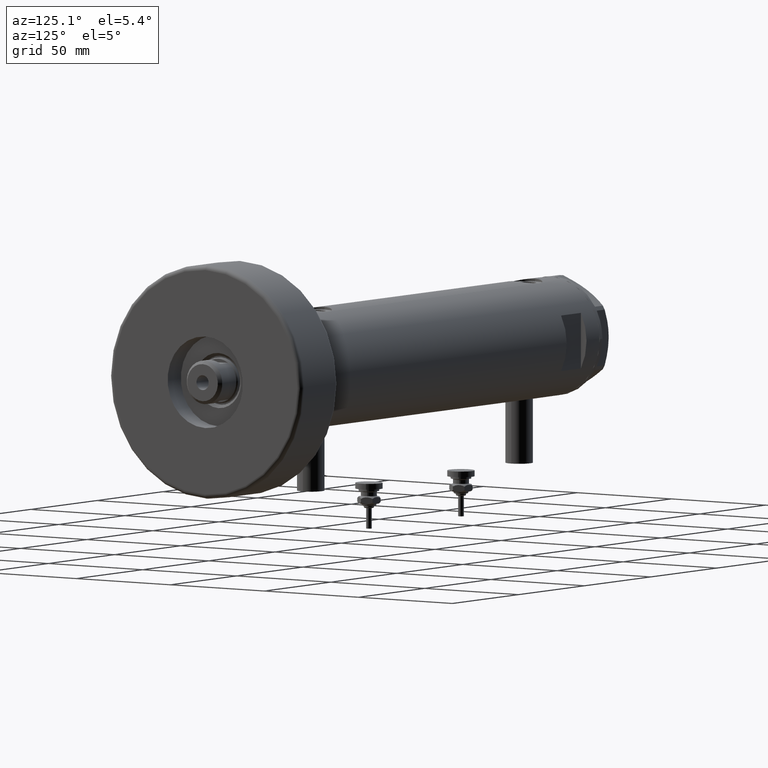
[diagram: clean part render]
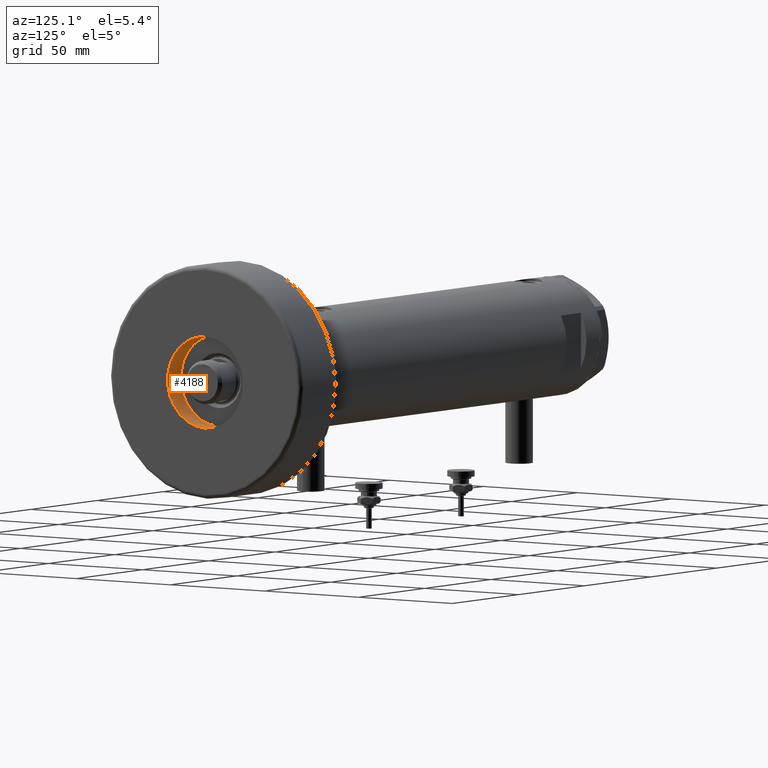
[diagram: same view with one face highlighted and labeled with its STEP entity id]
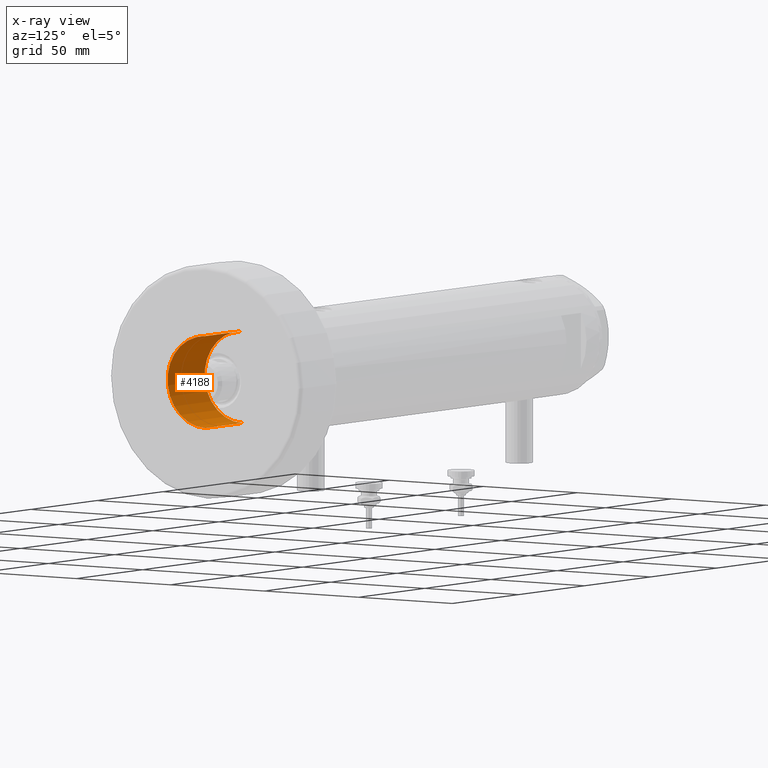
[diagram: x-ray of the same camera — body ghosted, the highlighted face saturated]
A machine part, auxiliary view. The second image highlights one B-rep face of the part: STEP entity #4188.
The next image is the same camera in x-ray: the body ghosted, the highlighted face saturated — about 0% of this face is hidden behind the body in this view.
In plain terms, the highlighted cylindrical surface (partial cylindrical patch) has radius 20 mm, axis along (1, 0, -0).
Its self-contained STEP definition (entity closure, byte-faithful):
#9 = LINE ( 'NONE', #1544, #3471 ) ;
#112 = CIRCLE ( 'NONE', #5531, 20.00000000000000000 ) ;
#294 = DIRECTION ( 'NONE',  ( -0.000000000000000000, -0.000000000000000000, 1.000000000000000000 ) ) ;
#483 = CARTESIAN_POINT ( 'NONE',  ( -20.00000000000000000, 2.449293598294706513E-15, 28.00000000000000000 ) ) ;
#705 = CARTESIAN_POINT ( 'NONE',  ( -20.00000000000000000, 2.449293598294706513E-15, 0.000000000000000000 ) ) ;
#1034 = DIRECTION ( 'NONE',  ( -0.000000000000000000, -0.000000000000000000, 1.000000000000000000 ) ) ;
#1177 = AXIS2_PLACEMENT_3D ( 'NONE', #4928, #5538, #1406 ) ;
#1204 = CYLINDRICAL_SURFACE ( 'NONE', #3473, 20.00000000000000000 ) ;
#1406 = DIRECTION ( 'NONE',  ( 1.000000000000000000, 0.000000000000000000, 0.000000000000000000 ) ) ;
#1412 = VERTEX_POINT ( 'NONE', #483 ) ;
#1443 = ORIENTED_EDGE ( 'NONE', *, *, #5012, .T. ) ;
#1544 = CARTESIAN_POINT ( 'NONE',  ( 20.00000000000000000, 0.000000000000000000, 0.000000000000000000 ) ) ;
#1752 = ORIENTED_EDGE ( 'NONE', *, *, #5399, .F. ) ;
#1773 = FACE_OUTER_BOUND ( 'NONE', #5905, .T. ) ;
#1966 = CARTESIAN_POINT ( 'NONE',  ( 20.00000000000000000, 0.000000000000000000, 0.000000000000000000 ) ) ;
#2329 = CARTESIAN_POINT ( 'NONE',  ( 0.000000000000000000, 0.000000000000000000, 0.000000000000000000 ) ) ;
#2822 = VECTOR ( 'NONE', #5243, 1000.000000000000000 ) ;
#2894 = DIRECTION ( 'NONE',  ( 0.000000000000000000, 0.000000000000000000, 1.000000000000000000 ) ) ;
#3166 = LINE ( 'NONE', #5268, #2822 ) ;
#3470 = CARTESIAN_POINT ( 'NONE',  ( 0.000000000000000000, 0.000000000000000000, 28.00000000000000000 ) ) ;
#3471 = VECTOR ( 'NONE', #1034, 1000.000000000000000 ) ;
#3473 = AXIS2_PLACEMENT_3D ( 'NONE', #2329, #294, #4429 ) ;
#3557 = EDGE_CURVE ( 'NONE', #5324, #1412, #3166, .T. ) ;
#4110 = CIRCLE ( 'NONE', #1177, 20.00000000000000000 ) ;
#4188 = ADVANCED_FACE ( 'NONE', ( #1773 ), #1204, .F. ) ;
#4222 = ORIENTED_EDGE ( 'NONE', *, *, #3557, .T. ) ;
#4353 = VERTEX_POINT ( 'NONE', #6211 ) ;
#4429 = DIRECTION ( 'NONE',  ( 1.000000000000000000, 0.000000000000000000, 0.000000000000000000 ) ) ;
#4684 = ORIENTED_EDGE ( 'NONE', *, *, #5627, .F. ) ;
#4928 = CARTESIAN_POINT ( 'NONE',  ( 0.000000000000000000, 0.000000000000000000, 0.000000000000000000 ) ) ;
#5012 = EDGE_CURVE ( 'NONE', #1412, #4353, #112, .T. ) ;
#5243 = DIRECTION ( 'NONE',  ( -0.000000000000000000, -0.000000000000000000, 1.000000000000000000 ) ) ;
#5268 = CARTESIAN_POINT ( 'NONE',  ( -20.00000000000000000, 2.449293598294706513E-15, 0.000000000000000000 ) ) ;
#5324 = VERTEX_POINT ( 'NONE', #705 ) ;
#5399 = EDGE_CURVE ( 'NONE', #5324, #6243, #4110, .T. ) ;
#5531 = AXIS2_PLACEMENT_3D ( 'NONE', #3470, #2894, #5954 ) ;
#5538 = DIRECTION ( 'NONE',  ( 0.000000000000000000, 0.000000000000000000, 1.000000000000000000 ) ) ;
#5627 = EDGE_CURVE ( 'NONE', #6243, #4353, #9, .T. ) ;
#5905 = EDGE_LOOP ( 'NONE', ( #1752, #4222, #1443, #4684 ) ) ;
#5954 = DIRECTION ( 'NONE',  ( 1.000000000000000000, 0.000000000000000000, 0.000000000000000000 ) ) ;
#6211 = CARTESIAN_POINT ( 'NONE',  ( 20.00000000000000000, 0.000000000000000000, 28.00000000000000000 ) ) ;
#6243 = VERTEX_POINT ( 'NONE', #1966 ) ;